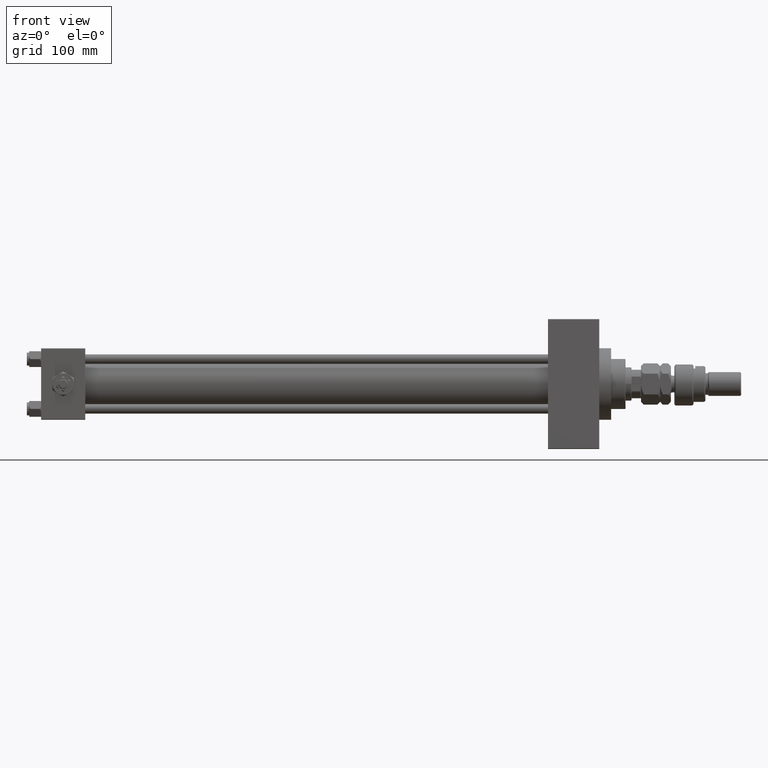
[diagram: clean part render]
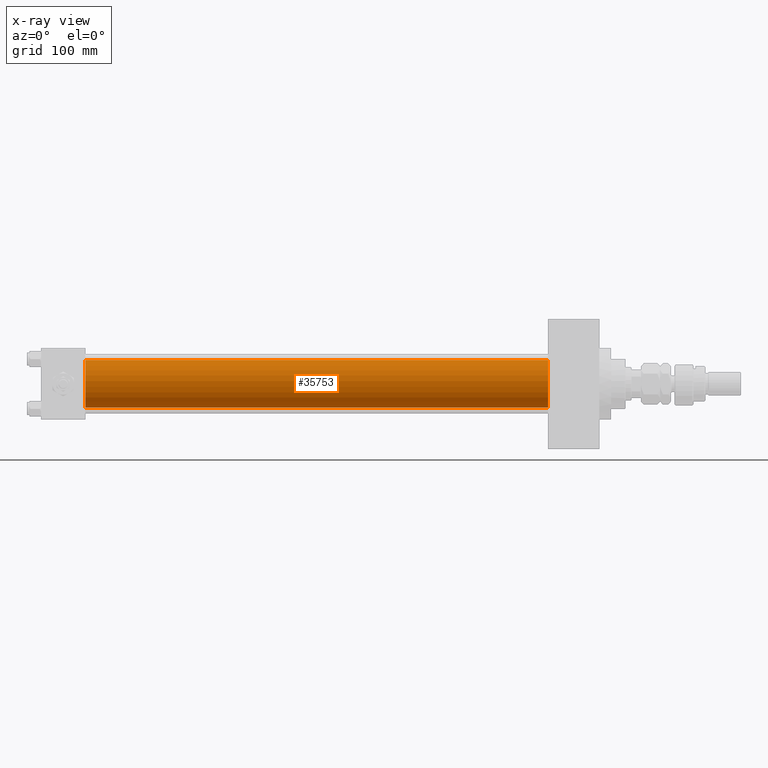
[diagram: x-ray — body ghosted, one internal face saturated and labeled with its STEP entity id]
A machine part, front view, then the same camera in x-ray: the body is ghosted and one INTERNAL B-rep face — a face not visible from any outside direction — is saturated and labeled: STEP entity #35753.
In plain terms, the highlighted cylindrical surface (edge-blend (fillet) strip) has radius 20 mm, axis along (-1, -0, -0).
Its self-contained STEP definition (entity closure, byte-faithful):
#220 = VECTOR ( 'NONE', #37893, 1000.000000000000000 ) ;
#4859 = ORIENTED_EDGE ( 'NONE', *, *, #19802, .F. ) ;
#5950 = CYLINDRICAL_SURFACE ( 'NONE', #43753, 20.00000000000000000 ) ;
#6902 = CARTESIAN_POINT ( 'NONE',  ( 425.0000000000000000, -2.602085213965210642E-15, 20.00000000000000000 ) ) ;
#6939 = LINE ( 'NONE', #22672, #220 ) ;
#7715 = CARTESIAN_POINT ( 'NONE',  ( 425.0000000000000000, -1.527916156705046464E-16, -20.00000000000000000 ) ) ;
#8067 = ORIENTED_EDGE ( 'NONE', *, *, #35239, .T. ) ;
#10671 = DIRECTION ( 'NONE',  ( 0.000000000000000000, 0.000000000000000000, 1.000000000000000000 ) ) ;
#10736 = CARTESIAN_POINT ( 'NONE',  ( 425.0000000000000000, -1.527916156705046464E-16, -20.00000000000000000 ) ) ;
#12093 = CARTESIAN_POINT ( 'NONE',  ( 37.00000000000000000, -1.527916156705046464E-16, -20.00000000000000000 ) ) ;
#14562 = DIRECTION ( 'NONE',  ( 1.000000000000000000, 0.000000000000000000, 0.000000000000000000 ) ) ;
#16516 = CARTESIAN_POINT ( 'NONE',  ( 425.0000000000000000, -2.602085213965210642E-15, 0.000000000000000000 ) ) ;
#17421 = EDGE_CURVE ( 'NONE', #40594, #51751, #6939, .T. ) ;
#19141 = EDGE_LOOP ( 'NONE', ( #51140, #8067, #4859, #23956 ) ) ;
#19802 = EDGE_CURVE ( 'NONE', #51751, #31570, #48881, .T. ) ;
#19917 = VERTEX_POINT ( 'NONE', #7715 ) ;
#22672 = CARTESIAN_POINT ( 'NONE',  ( 425.0000000000000000, -2.602085213965210642E-15, 20.00000000000000000 ) ) ;
#22983 = CIRCLE ( 'NONE', #23790, 20.00000000000000000 ) ;
#23790 = AXIS2_PLACEMENT_3D ( 'NONE', #16516, #48515, #44059 ) ;
#23956 = ORIENTED_EDGE ( 'NONE', *, *, #17421, .F. ) ;
#26150 = FACE_OUTER_BOUND ( 'NONE', #19141, .T. ) ;
#27984 = CARTESIAN_POINT ( 'NONE',  ( 37.00000000000000000, -2.602085213965210642E-15, 20.00000000000000000 ) ) ;
#30563 = DIRECTION ( 'NONE',  ( 0.000000000000000000, 0.000000000000000000, -1.000000000000000000 ) ) ;
#31570 = VERTEX_POINT ( 'NONE', #12093 ) ;
#32101 = AXIS2_PLACEMENT_3D ( 'NONE', #50489, #14562, #30563 ) ;
#35239 = EDGE_CURVE ( 'NONE', #19917, #31570, #36982, .T. ) ;
#35753 = ADVANCED_FACE ( 'NONE', ( #26150 ), #5950, .F. ) ;
#36982 = LINE ( 'NONE', #10736, #37055 ) ;
#37055 = VECTOR ( 'NONE', #38291, 1000.000000000000000 ) ;
#37893 = DIRECTION ( 'NONE',  ( -1.000000000000000000, -0.000000000000000000, -0.000000000000000000 ) ) ;
#37959 = DIRECTION ( 'NONE',  ( -1.000000000000000000, -0.000000000000000000, -0.000000000000000000 ) ) ;
#38291 = DIRECTION ( 'NONE',  ( -1.000000000000000000, -0.000000000000000000, -0.000000000000000000 ) ) ;
#38991 = EDGE_CURVE ( 'NONE', #40594, #19917, #22983, .T. ) ;
#40594 = VERTEX_POINT ( 'NONE', #6902 ) ;
#41880 = CARTESIAN_POINT ( 'NONE',  ( 425.0000000000000000, -2.602085213965210642E-15, 0.000000000000000000 ) ) ;
#43753 = AXIS2_PLACEMENT_3D ( 'NONE', #41880, #37959, #10671 ) ;
#44059 = DIRECTION ( 'NONE',  ( 0.000000000000000000, 0.000000000000000000, -1.000000000000000000 ) ) ;
#48515 = DIRECTION ( 'NONE',  ( 1.000000000000000000, 0.000000000000000000, 0.000000000000000000 ) ) ;
#48881 = CIRCLE ( 'NONE', #32101, 20.00000000000000000 ) ;
#50489 = CARTESIAN_POINT ( 'NONE',  ( 37.00000000000000000, -2.602085213965210642E-15, 0.000000000000000000 ) ) ;
#51140 = ORIENTED_EDGE ( 'NONE', *, *, #38991, .T. ) ;
#51751 = VERTEX_POINT ( 'NONE', #27984 ) ;